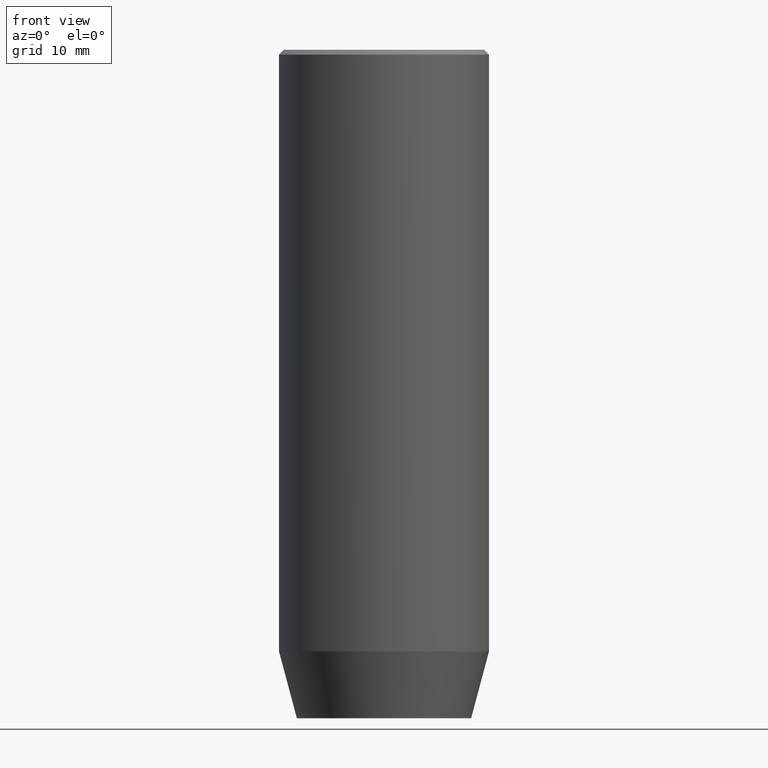
[diagram: clean part render]
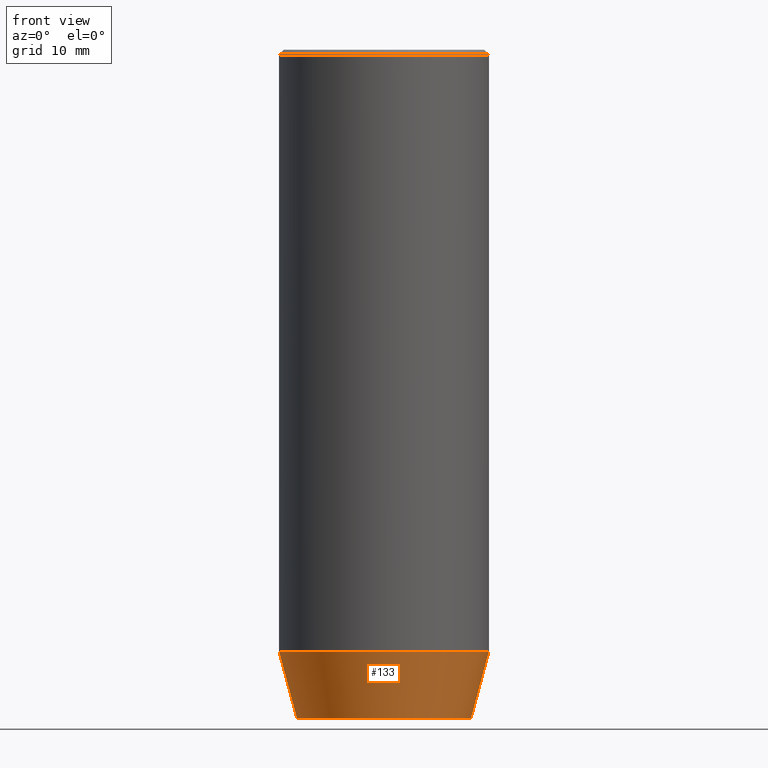
[diagram: same view with one face highlighted and labeled with its STEP entity id]
A machine part, front view. The second image highlights one B-rep face of the part: STEP entity #133.
In plain terms, the highlighted conical surface has half-angle 15 deg.
Its self-contained STEP definition (entity closure, byte-faithful):
#1 = DIRECTION ( 'NONE',  ( 1.000000000000000000, 0.000000000000000000, 0.000000000000000000 ) ) ;
#46 = AXIS2_PLACEMENT_3D ( 'NONE', #423, #338, #185 ) ;
#53 = EDGE_LOOP ( 'NONE', ( #164, #202, #267, #315 ) ) ;
#66 = VERTEX_POINT ( 'NONE', #405 ) ;
#74 = CONICAL_SURFACE ( 'NONE', #46, 11.00000000000000000, 0.2617993877991500740 ) ;
#123 = VECTOR ( 'NONE', #378, 1000.000000000000000 ) ;
#133 = ADVANCED_FACE ( 'NONE', ( #283 ), #74, .T. ) ;
#164 = ORIENTED_EDGE ( 'NONE', *, *, #190, .F. ) ;
#185 = DIRECTION ( 'NONE',  ( 1.000000000000000000, 0.000000000000000000, 0.000000000000000000 ) ) ;
#186 = CARTESIAN_POINT ( 'NONE',  ( 0.000000000000000000, 0.000000000000000000, -70.00000000000000000 ) ) ;
#190 = EDGE_CURVE ( 'NONE', #484, #248, #258, .T. ) ;
#202 = ORIENTED_EDGE ( 'NONE', *, *, #307, .T. ) ;
#208 = AXIS2_PLACEMENT_3D ( 'NONE', #366, #585, #505 ) ;
#219 = CARTESIAN_POINT ( 'NONE',  ( 11.00000000000000000, 0.000000000000000000, -63.00000000000000000 ) ) ;
#241 = LINE ( 'NONE', #479, #123 ) ;
#248 = VERTEX_POINT ( 'NONE', #314 ) ;
#249 = CIRCLE ( 'NONE', #208, 11.00000000000000000 ) ;
#258 = LINE ( 'NONE', #261, #343 ) ;
#261 = CARTESIAN_POINT ( 'NONE',  ( -11.00000000000000000, 1.347111479062088405E-15, -63.00000000000000000 ) ) ;
#267 = ORIENTED_EDGE ( 'NONE', *, *, #441, .T. ) ;
#283 = FACE_OUTER_BOUND ( 'NONE', #53, .T. ) ;
#307 = EDGE_CURVE ( 'NONE', #484, #66, #430, .T. ) ;
#310 = CARTESIAN_POINT ( 'NONE',  ( -9.124355652982133691, 1.232261386766375507E-15, -70.00000000000000000 ) ) ;
#314 = CARTESIAN_POINT ( 'NONE',  ( -11.00000000000000000, 1.347111479062088405E-15, -63.00000000000000000 ) ) ;
#315 = ORIENTED_EDGE ( 'NONE', *, *, #341, .F. ) ;
#320 = DIRECTION ( 'NONE',  ( -0.000000000000000000, -0.000000000000000000, 1.000000000000000000 ) ) ;
#336 = AXIS2_PLACEMENT_3D ( 'NONE', #186, #320, #1 ) ;
#338 = DIRECTION ( 'NONE',  ( -0.000000000000000000, -0.000000000000000000, 1.000000000000000000 ) ) ;
#341 = EDGE_CURVE ( 'NONE', #248, #531, #249, .T. ) ;
#343 = VECTOR ( 'NONE', #439, 1000.000000000000000 ) ;
#366 = CARTESIAN_POINT ( 'NONE',  ( 0.000000000000000000, 0.000000000000000000, -63.00000000000000000 ) ) ;
#378 = DIRECTION ( 'NONE',  ( 0.2588190451025213501, 0.000000000000000000, 0.9659258262890680902 ) ) ;
#405 = CARTESIAN_POINT ( 'NONE',  ( 9.124355652982133691, 0.000000000000000000, -70.00000000000000000 ) ) ;
#423 = CARTESIAN_POINT ( 'NONE',  ( 0.000000000000000000, 0.000000000000000000, -63.00000000000000000 ) ) ;
#430 = CIRCLE ( 'NONE', #336, 9.124355652982133691 ) ;
#439 = DIRECTION ( 'NONE',  ( -0.2588190451025213501, 3.169619151431772337E-17, 0.9659258262890680902 ) ) ;
#441 = EDGE_CURVE ( 'NONE', #66, #531, #241, .T. ) ;
#479 = CARTESIAN_POINT ( 'NONE',  ( 11.00000000000000000, 0.000000000000000000, -63.00000000000000000 ) ) ;
#484 = VERTEX_POINT ( 'NONE', #310 ) ;
#505 = DIRECTION ( 'NONE',  ( 1.000000000000000000, 0.000000000000000000, 0.000000000000000000 ) ) ;
#531 = VERTEX_POINT ( 'NONE', #219 ) ;
#585 = DIRECTION ( 'NONE',  ( -0.000000000000000000, -0.000000000000000000, 1.000000000000000000 ) ) ;